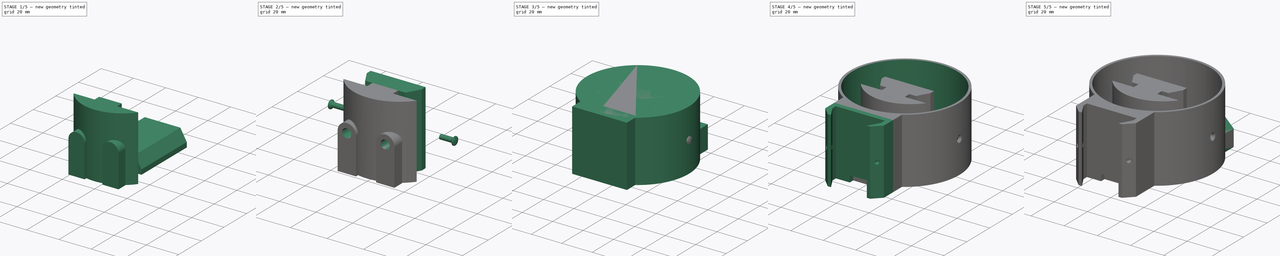
[diagram: build sequence overview — one tinted view per stage of 5, left to right]
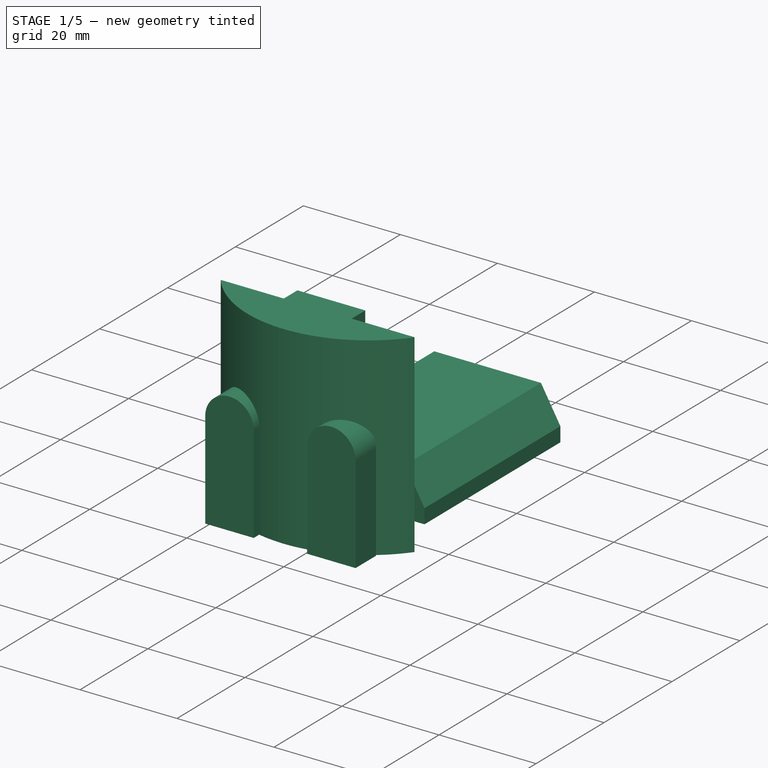
[diagram: stage 1 of 5 — iso view after this stage's code; geometry added in this stage tinted green]
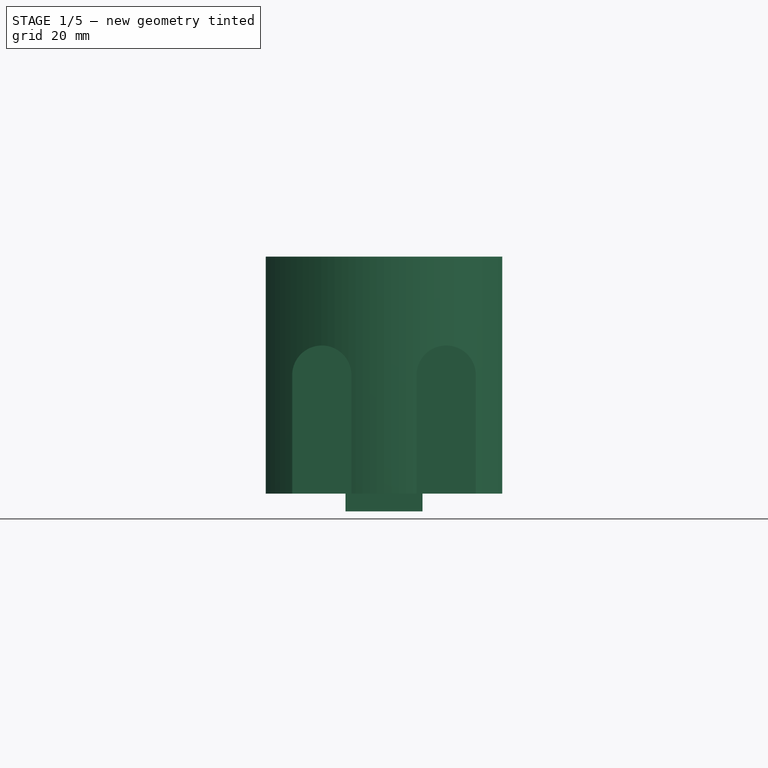
[diagram: stage 1 of 5 — front view after this stage's code; geometry added in this stage tinted green]
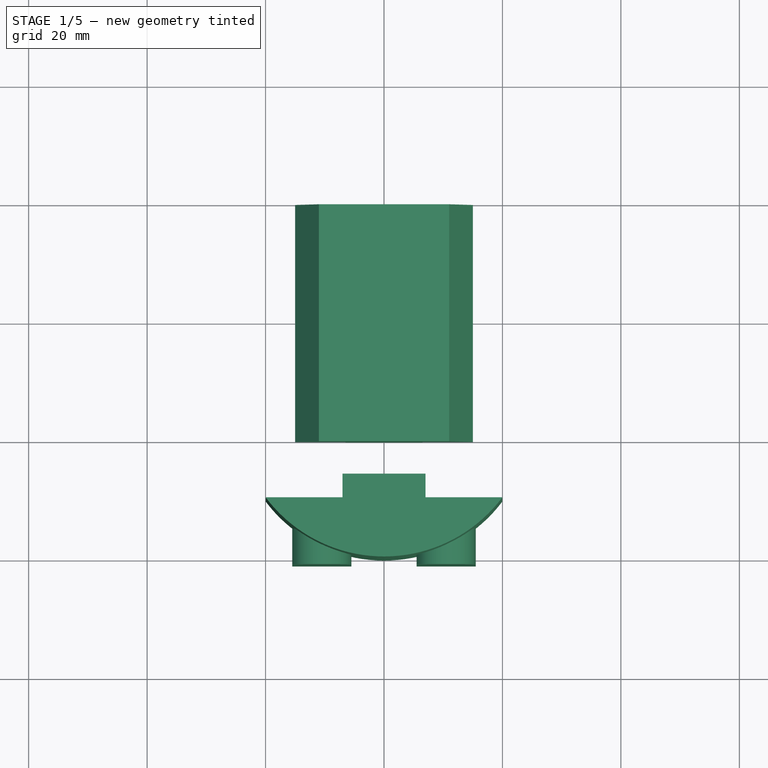
[diagram: stage 1 of 5 — top view after this stage's code; geometry added in this stage tinted green]
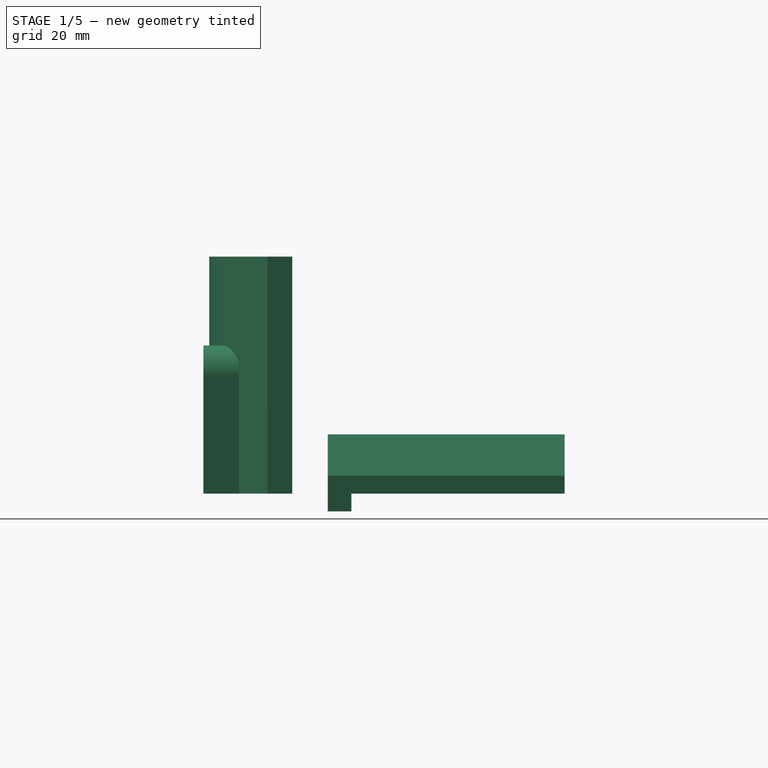
[diagram: stage 1 of 5 — right view after this stage's code; geometry added in this stage tinted green]
FCSTD DOCUMENT  (FreeCAD 0.17R12284 (Git))
Label: dovetail
License: All rights reserved
LicenseURL: http://en.wikipedia.org/wiki/All_rights_reserved
objects: Part::Box×11, Part::Cylinder×11, Part::MultiFuse×10, Part::Cut×8, Sketcher::SketchObject×4, Part::Extrusion×4, Part::FeaturePython×4, Part::Chamfer×2
note: 54 computed .brp shape members not serialized (recipe doc carries the construction recipe); baked Part::Feature solids carry a one-line shape summary decoded from their .brp

FEATURE [Sketcher::SketchObject] Sketch002
  MapMode = 5
  Placement = pos=(0,40,0) rot=(0,0.707107,0.707107;3.14159rad)
  sketch-geometry (6):
    g0: LineSegment StartX=0 StartY=0 StartZ=0 EndX=0 EndY=3 EndZ=0
    g1: LineSegment StartX=0 StartY=3 StartZ=0 EndX=-4 EndY=10 EndZ=0
    g2: LineSegment StartX=-4 StartY=10 StartZ=0 EndX=-26 EndY=10 EndZ=0
    g3: LineSegment StartX=-26 StartY=10 StartZ=0 EndX=-30 EndY=3 EndZ=0
    g4: LineSegment StartX=-30 StartY=3 StartZ=0 EndX=-30 EndY=0 EndZ=0
    g5: LineSegment StartX=-30 StartY=0 StartZ=0 EndX=0 EndY=0 EndZ=0
  constraints (11):
    c: Coincident(g-1,g0)
    c: PointOnObject(g0,g-2)
    c: Coincident(g0,g1)
    c: Coincident(g1,g2)
    c: Horizontal(g2)
    c: Coincident(g2,g3)
    c: Coincident(g3,g4)
    c: PointOnObject(g4,g-1)
    c: Vertical(g4)
    c: Coincident(g4,g5)
    c: Coincident(g5,g0)
FEATURE [Part::Extrusion] Extrude002
  Base = -> Sketch002
  Dir = (0,1,0)
  DirMode = 2
  FaceMakerClass = Part::FaceMakerBullseye
  LengthFwd = -40
  LengthRev = 0
  Placement = pos=(-15,0,0) rot=(0,0,1;0rad)
  Solid = true
  Symmetric = false
FEATURE [Part::Box] Box003  label="Krychle003"
  AttacherType = Attacher::AttachEngine3D
  Height = 3
  Length = 13
  Placement = pos=(-6.5,0,-3) rot=(0,0,1;0rad)
  Width = 4
FEATURE [Part::Cylinder] Cylinder002  label="Válec002"
  Angle = 106
  AttacherType = Attacher::AttachEngine3D
  Height = 40
  Placement = pos=(0,5,0) rot=(0,0,1;3.78736rad)
  Radius = 25
FEATURE [Part::Box] Box004  label="Krychle004"
  AttacherType = Attacher::AttachEngine3D
  Height = 40
  Length = 40
  Placement = pos=(-20,-10,0) rot=(0,0,1;0rad)
  Width = 15
FEATURE [Part::Cut] Cut002
  Base = -> Cylinder002
  Tool = -> Box004
FEATURE [Part::Box] Box005  label="Krychle005"
  AttacherType = Attacher::AttachEngine3D
  Height = 40
  Length = 14
  Placement = pos=(-7,-10,0) rot=(0,0,1;0rad)
  Width = 4
FEATURE [Part::Box] Box006  label="Krychle006"
  AttacherType = Attacher::AttachEngine3D
  Height = 20
  Length = 10
  Placement = pos=(5.5,-21,0) rot=(0,0,1;0rad)
  Width = 6
FEATURE [Part::Box] Box007  label="Krychle007"
  AttacherType = Attacher::AttachEngine3D
  Height = 20
  Length = 10
  Placement = pos=(-15.5,-21,0) rot=(0,0,1;0rad)
  Width = 6
FEATURE [Part::Cylinder] Cylinder003  label="Válec003"
  Angle = 360
  AttacherType = Attacher::AttachEngine3D
  Height = 6
  Placement = pos=(10.5,-15,20) rot=(1,0,0;1.5708rad)
  Radius = 5
FEATURE [Part::Cylinder] Cylinder004  label="Válec004"
  Angle = 360
  AttacherType = Attacher::AttachEngine3D
  Height = 6
  Placement = pos=(-10.5,-15,20) rot=(1,0,0;1.5708rad)
  Radius = 5
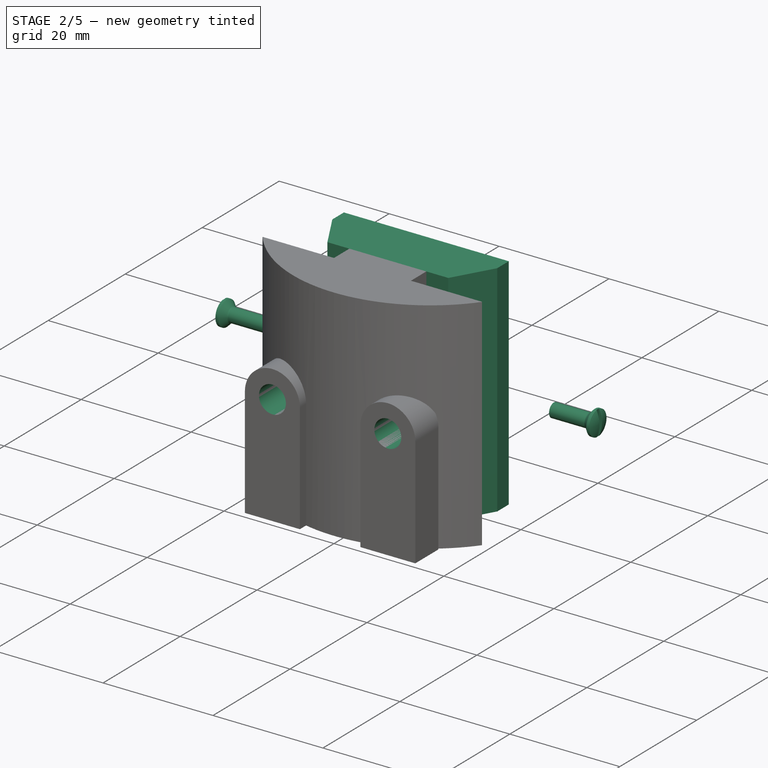
[diagram: stage 2 of 5 — iso view after this stage's code; geometry added in this stage tinted green]
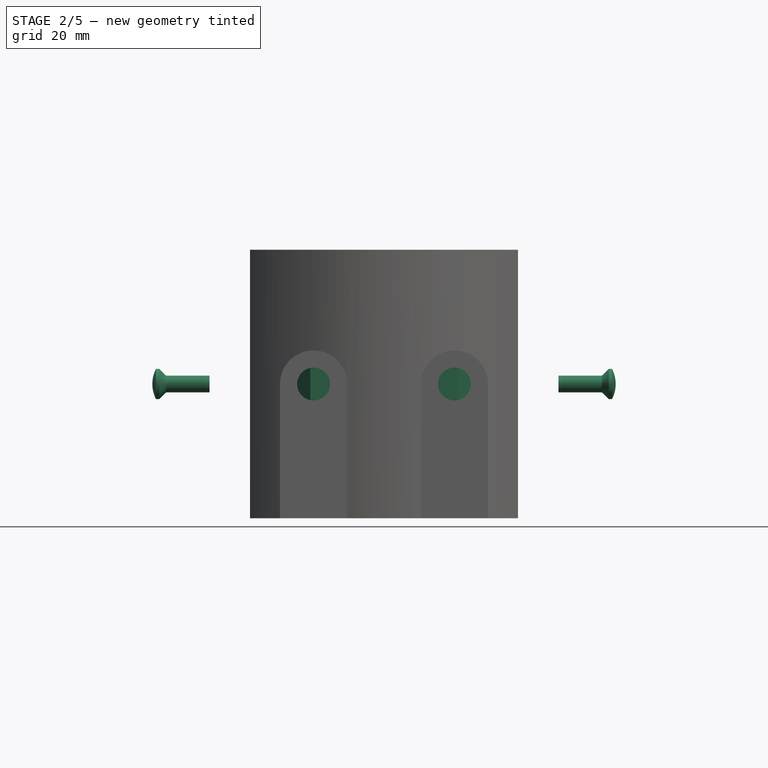
[diagram: stage 2 of 5 — front view after this stage's code; geometry added in this stage tinted green]
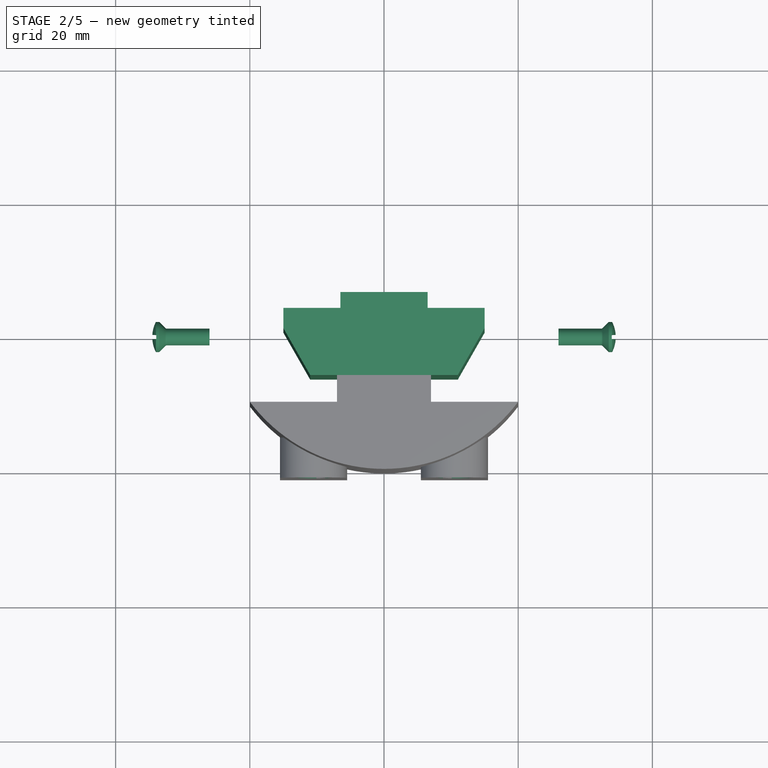
[diagram: stage 2 of 5 — top view after this stage's code; geometry added in this stage tinted green]
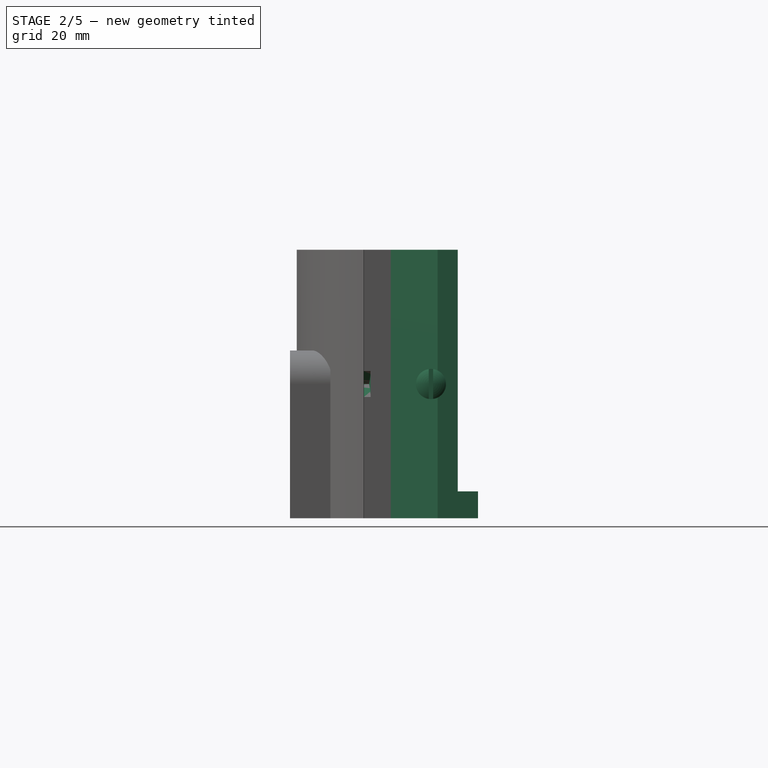
[diagram: stage 2 of 5 — right view after this stage's code; geometry added in this stage tinted green]
FEATURE [Part::MultiFuse] Fusion003  label="Dovelal profile001"
  Placement = pos=(0,4,0) rot=(1,0,0;1.5708rad)
  Shapes = -> [Extrude002,Box003]
FEATURE [Part::Cylinder] Cylinder005  label="Válec005"
  Angle = 360
  AttacherType = Attacher::AttachEngine3D
  Height = 16
  Placement = pos=(10.5,-7,20) rot=(1,0,0;1.5708rad)
  Radius = 2.45
FEATURE [Part::Cylinder] Cylinder006  label="Válec006"
  Angle = 360
  AttacherType = Attacher::AttachEngine3D
  Height = 16
  Placement = pos=(-10.5,-7,20) rot=(1,0,0;1.5708rad)
  Radius = 2.45
FEATURE [Part::FeaturePython] Nut  label="M5-Nut"  # Fasteners workbench fastener (typed FeaturePython)
  Placement = pos=(-10.5,-9,20) rot=(1,0,0;1.5708rad)
  diameter = 7
  invert = false
  matchOuter = false
  offset = 0
  thread = false
  type = 1
FEATURE [Part::FeaturePython] Nut001  label="M5-Nut001"  # Fasteners workbench fastener (typed FeaturePython)
  Placement = pos=(10.5,-9,20) rot=(1,0,0;1.5708rad)
  diameter = 7
  invert = false
  matchOuter = false
  offset = 0
  thread = false
  type = 1
FEATURE [Part::MultiFuse] Fusion005
  Shapes = -> [Nut,Nut001,Cylinder006,Cylinder005]
FEATURE [Part::FeaturePython] Screw  label="M2.5x8-Screw"  # Fasteners workbench fastener (typed FeaturePython)
  Placement = pos=(34,0,20) rot=(0,1,0;1.5708rad)
  diameter = 3
  invert = false
  length = 3
  matchOuter = false
  offset = 0
  thread = false
  type = 12
FEATURE [Part::FeaturePython] Screw001  label="M2.5x8-Screw001"  # Fasteners workbench fastener (typed FeaturePython)
  Placement = pos=(-34,0,20) rot=(0,-1,0;1.5708rad)
  diameter = 3
  invert = false
  length = 3
  matchOuter = false
  offset = 0
  thread = false
  type = 12
FEATURE [Part::MultiFuse] Fusion010
  Shapes = -> [Cylinder003,Box006,Fusion003,Cut002,Cylinder004,Box007,Box005]
FEATURE [Part::Cut] Cut008  label="Dovetail adapter"
  Base = -> Fusion010
  Tool = -> Fusion005
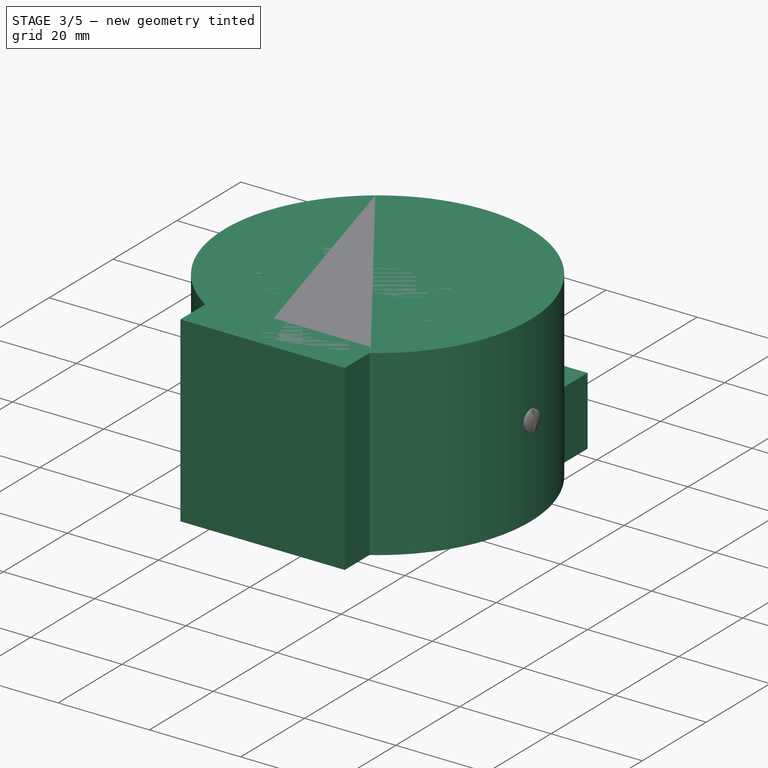
[diagram: stage 3 of 5 — iso view after this stage's code; geometry added in this stage tinted green]
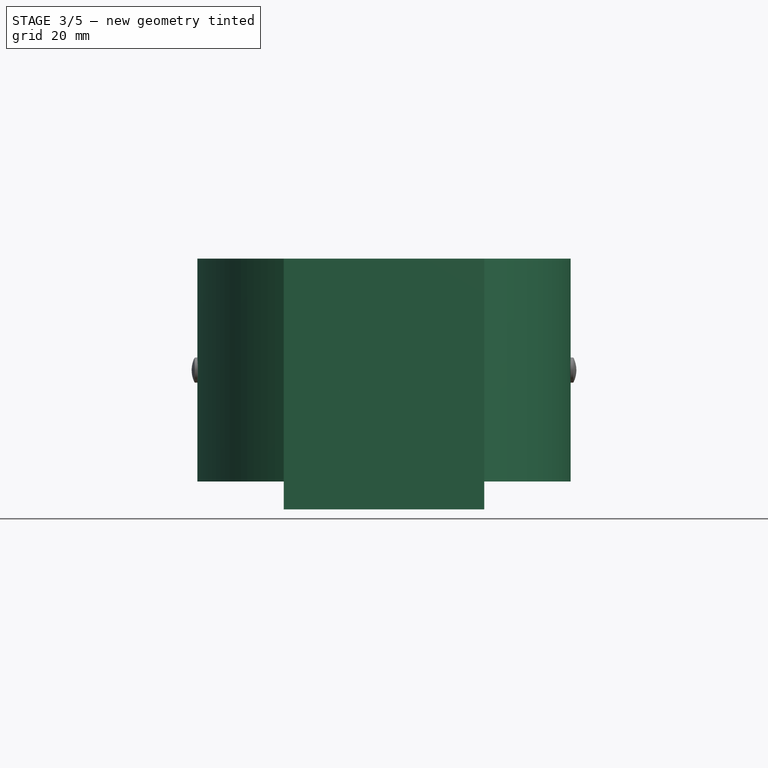
[diagram: stage 3 of 5 — front view after this stage's code; geometry added in this stage tinted green]
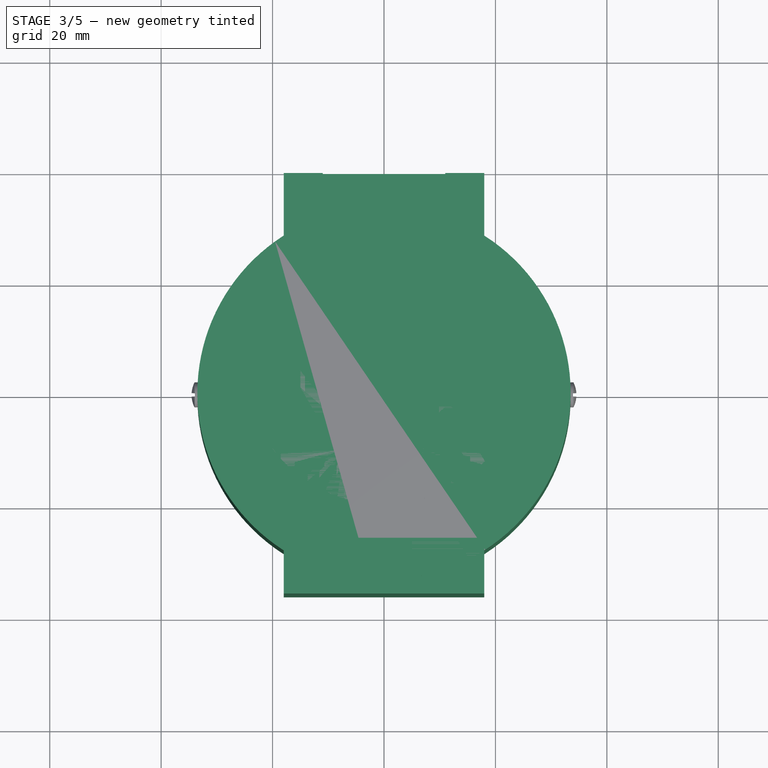
[diagram: stage 3 of 5 — top view after this stage's code; geometry added in this stage tinted green]
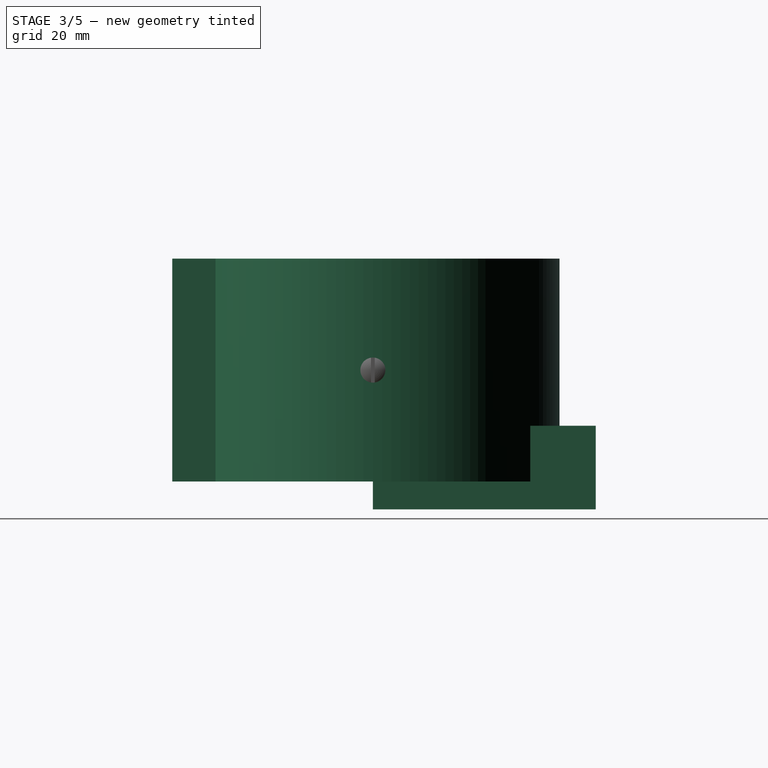
[diagram: stage 3 of 5 — right view after this stage's code; geometry added in this stage tinted green]
FEATURE [Sketcher::SketchObject] Sketch003
  MapMode = 5
  Placement = pos=(0,40,0) rot=(0,0.707107,0.707107;3.14159rad)
  sketch-geometry (6):
    g0: LineSegment StartX=0 StartY=0 StartZ=0 EndX=0 EndY=3 EndZ=0
    g1: LineSegment StartX=0 StartY=3 StartZ=0 EndX=-4 EndY=10 EndZ=0
    g2: LineSegment StartX=-4 StartY=10 StartZ=0 EndX=-26 EndY=10 EndZ=0
    g3: LineSegment StartX=-26 StartY=10 StartZ=0 EndX=-30 EndY=3 EndZ=0
    g4: LineSegment StartX=-30 StartY=3 StartZ=0 EndX=-30 EndY=0 EndZ=0
    g5: LineSegment StartX=-30 StartY=0 StartZ=0 EndX=0 EndY=0 EndZ=0
  constraints (11):
    c: Coincident(g-1,g0)
    c: PointOnObject(g0,g-2)
    c: Coincident(g0,g1)
    c: Coincident(g1,g2)
    c: Horizontal(g2)
    c: Coincident(g2,g3)
    c: Coincident(g3,g4)
    c: PointOnObject(g4,g-1)
    c: Vertical(g4)
    c: Coincident(g4,g5)
    c: Coincident(g5,g0)
FEATURE [Part::Extrusion] Extrude003
  Base = -> Sketch003
  Dir = (0,1,0)
  DirMode = 2
  FaceMakerClass = Part::FaceMakerBullseye
  LengthFwd = -40
  LengthRev = 0
  Placement = pos=(-15,0,0) rot=(0,0,1;0rad)
  Solid = true
  Symmetric = false
FEATURE [Part::Cylinder] Cylinder007  label="Válec007"
  Angle = 360
  AttacherType = Attacher::AttachEngine3D
  Height = 10
  Placement = pos=(-12,20,4) rot=(0,-1,0;0.785398rad)
  Radius = 1.4
FEATURE [Part::Cylinder] Cylinder008  label="Válec008"
  Angle = 360
  AttacherType = Attacher::AttachEngine3D
  Height = 10
  Placement = pos=(12,20,4) rot=(0,1,0;0.785398rad)
  Radius = 1.4
FEATURE [Part::Box] Box008  label="Krychle008"
  AttacherType = Attacher::AttachEngine3D
  Height = 15
  Length = 36
  Placement = pos=(-18,0,-5) rot=(0,0,1;0rad)
  Width = 40
FEATURE [Part::Box] Box009  label="Krychle009"
  AttacherType = Attacher::AttachEngine3D
  Height = 3
  Length = 13
  Placement = pos=(-6.5,0,-3) rot=(0,0,1;0rad)
  Width = 4
FEATURE [Part::MultiFuse] Fusion007  label="Dovecot profile002"
  Shapes = -> [Extrude003,Box009]
FEATURE [Part::Cut] Cut004
  Base = -> Box008
  Tool = -> Fusion007
FEATURE [Part::Cylinder] Cylinder010  label="Válec010"
  Angle = 360
  AttacherType = Attacher::AttachEngine3D
  Height = 40
  Placement = pos=(0,0,0) rot=(0,0,1;3.83972rad)
  Radius = 33.5
FEATURE [Part::Box] Box010  label="Krychle010"
  AttacherType = Attacher::AttachEngine3D
  Height = 40
  Length = 36
  Placement = pos=(-18,-36,0) rot=(0,0,1;0rad)
  Width = 10
FEATURE [Part::MultiFuse] Fusion009
  Shapes = -> [Screw,Screw001]
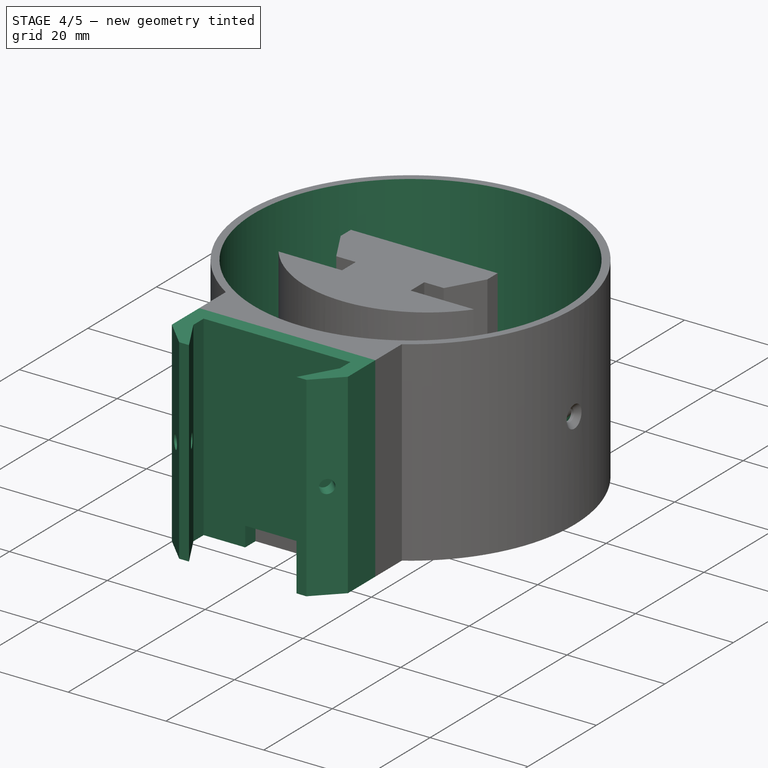
[diagram: stage 4 of 5 — iso view after this stage's code; geometry added in this stage tinted green]
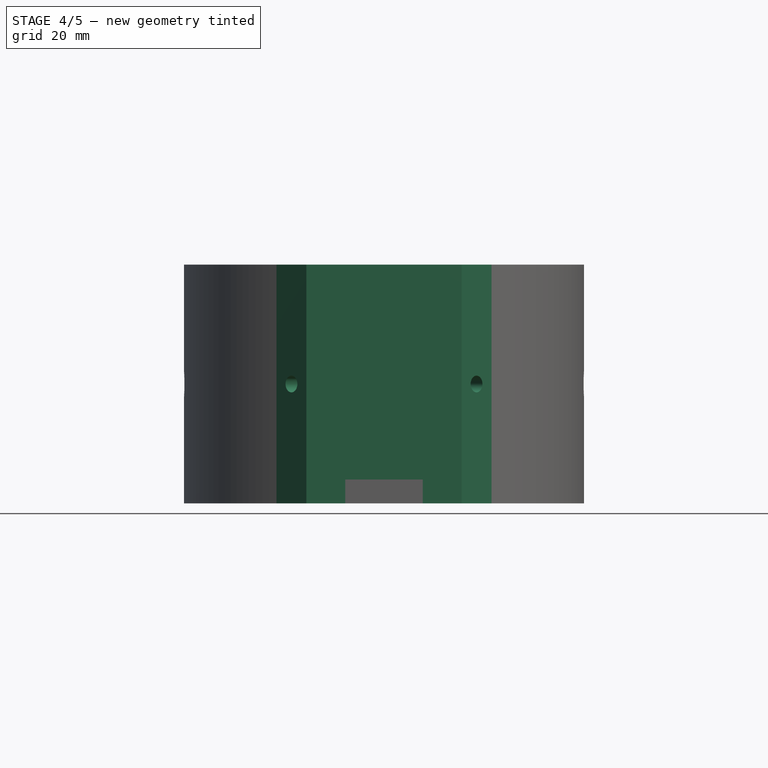
[diagram: stage 4 of 5 — front view after this stage's code; geometry added in this stage tinted green]
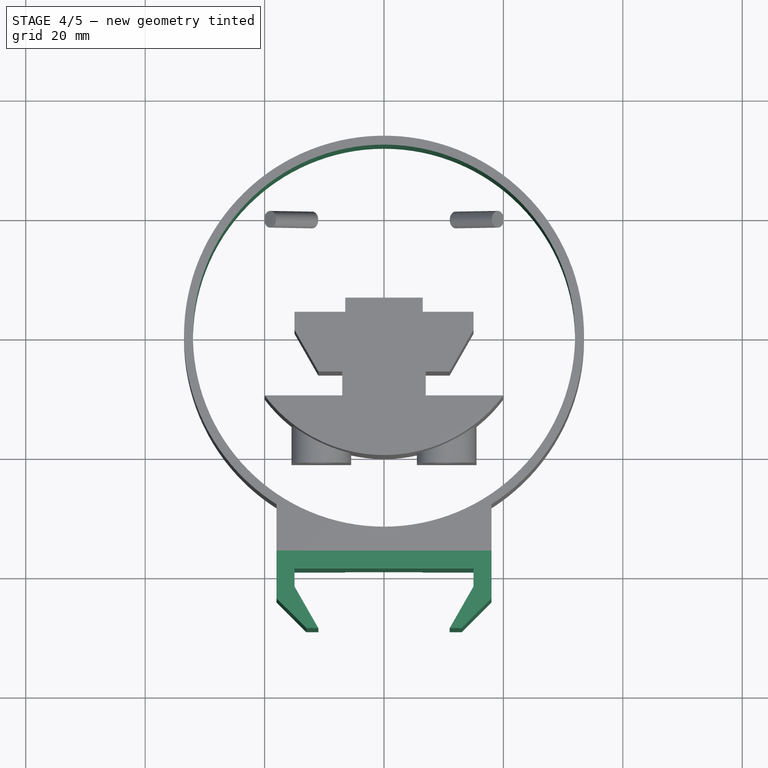
[diagram: stage 4 of 5 — top view after this stage's code; geometry added in this stage tinted green]
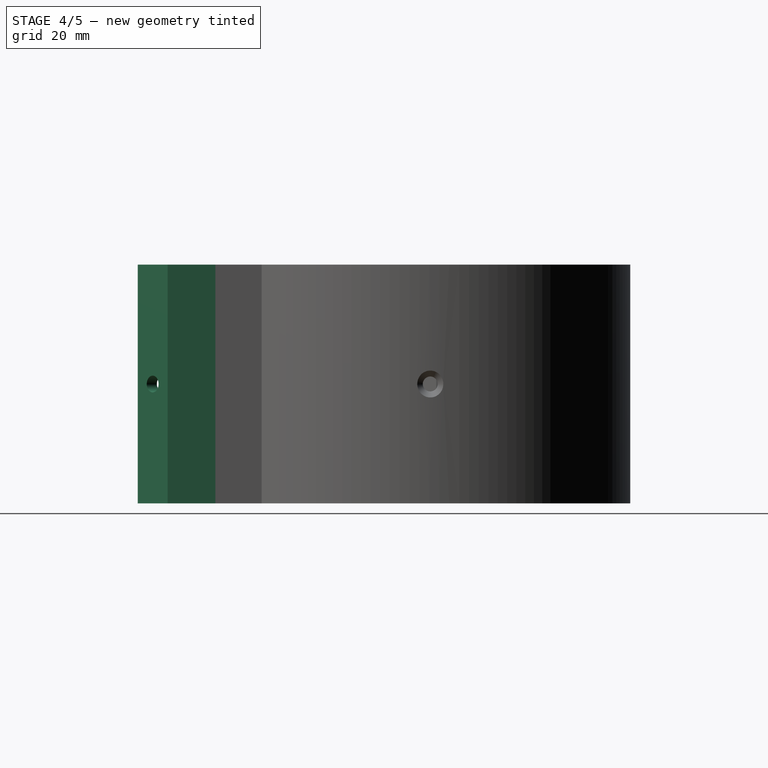
[diagram: stage 4 of 5 — right view after this stage's code; geometry added in this stage tinted green]
FEATURE [Part::Cylinder] Cylinder  label="Válec"
  Angle = 360
  AttacherType = Attacher::AttachEngine3D
  Height = 10
  Placement = pos=(12,20,4) rot=(0,1,0;0.785398rad)
  Radius = 1.4
FEATURE [Part::Cylinder] Cylinder001  label="Válec001"
  Angle = 360
  AttacherType = Attacher::AttachEngine3D
  Height = 10
  Placement = pos=(-12,20,4) rot=(0,-1,0;0.785398rad)
  Radius = 1.4
FEATURE [Part::MultiFuse] Fusion002
  Shapes = -> [Cylinder,Cylinder001]
FEATURE [Part::MultiFuse] Fusion006
  Shapes = -> [Cylinder008,Cylinder007]
FEATURE [Part::Chamfer] Chamfer001
  Base = -> Cut004
  Edges = 2 edges r=5: [Edge2,Edge29]
FEATURE [Part::Cut] Cut005  label="Dov holder001"
  Base = -> Chamfer001
  Placement = pos=(0,-39,0) rot=(1,0,0;1.5708rad)
  Tool = -> Fusion006
FEATURE [Part::Cylinder] Cylinder009  label="Válec009"
  Angle = 360
  AttacherType = Attacher::AttachEngine3D
  Height = 40
  Placement = pos=(0,0,0) rot=(0,0,1;0.872665rad)
  Radius = 32
FEATURE [Part::MultiFuse] Fusion008
  Shapes = -> [Cylinder010,Cut005,Box010]
FEATURE [Part::Cut] Cut006
  Base = -> Fusion008
  Tool = -> Cylinder009
FEATURE [Part::Cut] Cut007  label="Telscop dovetail holder"
  Base = -> Cut006
  Tool = -> Fusion009
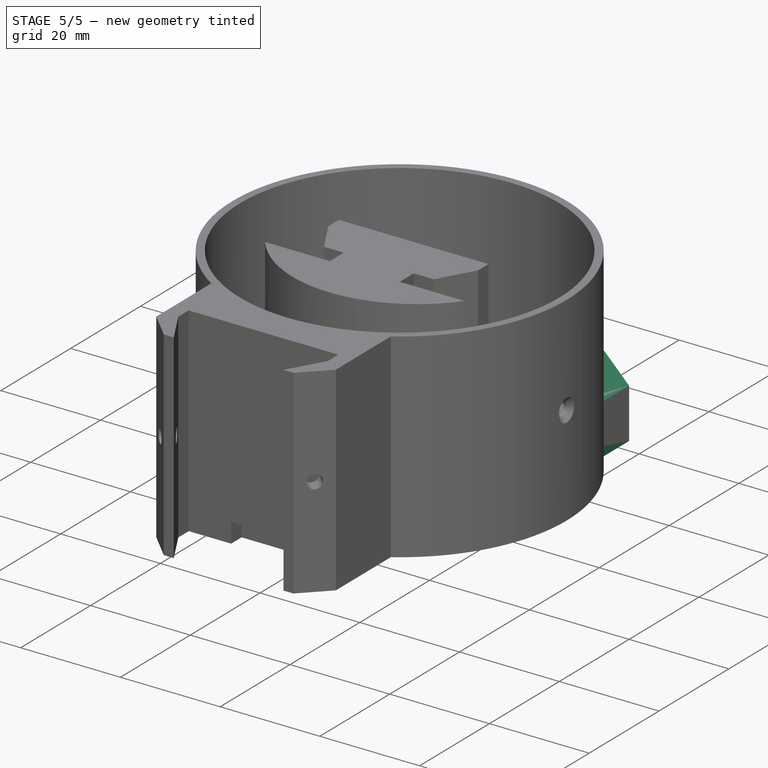
[diagram: stage 5 of 5 — iso view after this stage's code; geometry added in this stage tinted green]
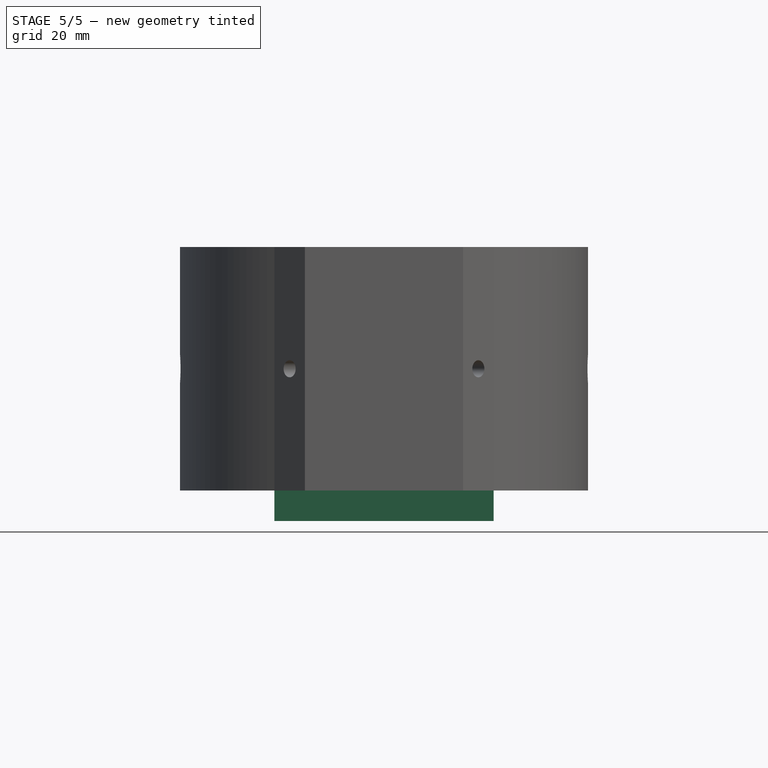
[diagram: stage 5 of 5 — front view after this stage's code; geometry added in this stage tinted green]
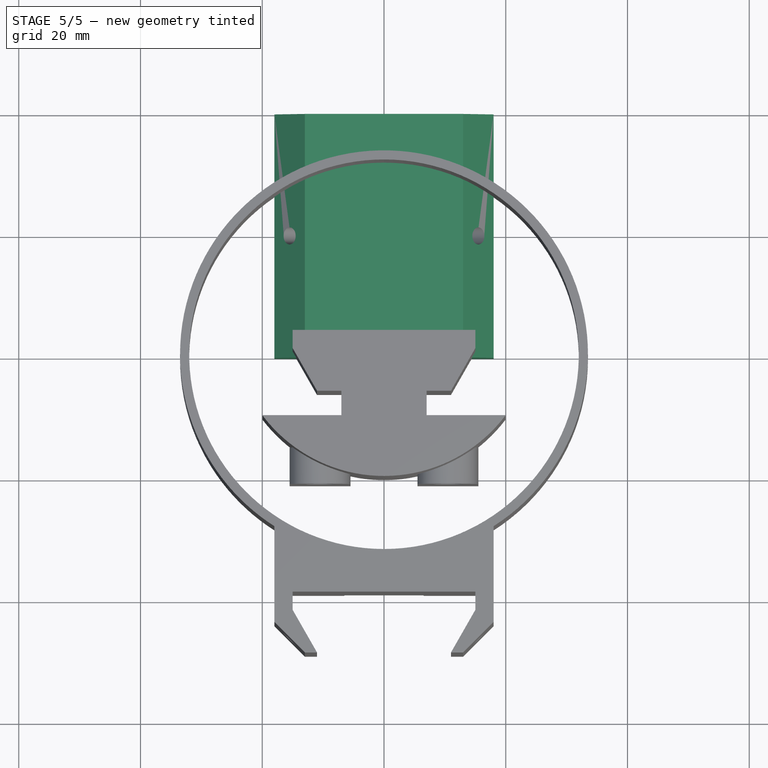
[diagram: stage 5 of 5 — top view after this stage's code; geometry added in this stage tinted green]
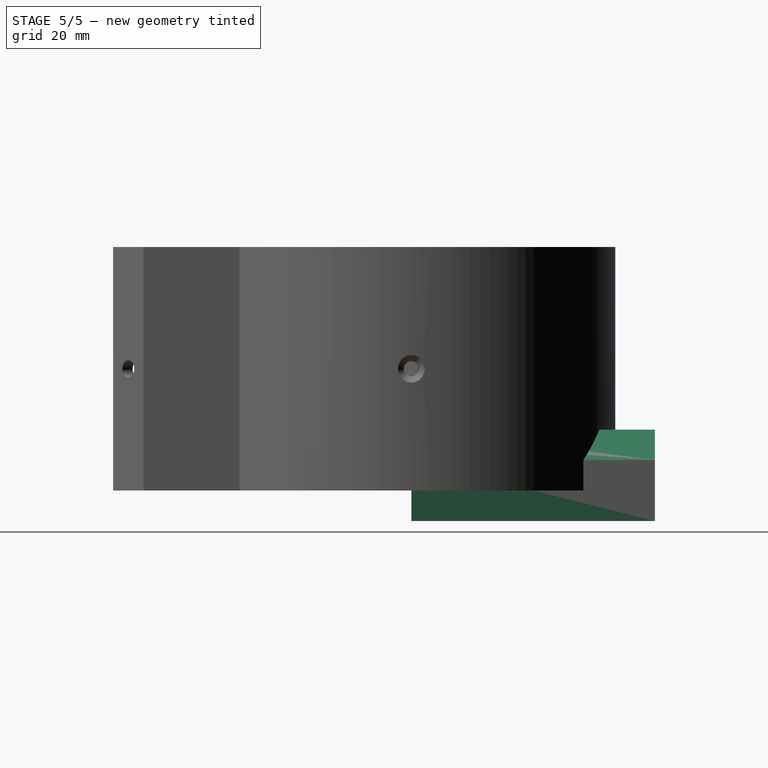
[diagram: stage 5 of 5 — right view after this stage's code; geometry added in this stage tinted green]
FEATURE [Sketcher::SketchObject] Sketch
  MapMode = 5
  Placement = pos=(0,40,0) rot=(0,0.707107,0.707107;3.14159rad)
  sketch-geometry (6):
    g0: LineSegment StartX=0 StartY=0 StartZ=0 EndX=0 EndY=3 EndZ=0
    g1: LineSegment StartX=0 StartY=3 StartZ=0 EndX=-4 EndY=10 EndZ=0
    g2: LineSegment StartX=-4 StartY=10 StartZ=0 EndX=-26 EndY=10 EndZ=0
    g3: LineSegment StartX=-26 StartY=10 StartZ=0 EndX=-30 EndY=3 EndZ=0
    g4: LineSegment StartX=-30 StartY=3 StartZ=0 EndX=-30 EndY=0 EndZ=0
    g5: LineSegment StartX=-30 StartY=0 StartZ=0 EndX=0 EndY=0 EndZ=0
  constraints (11):
    c: Coincident(g-1,g0)
    c: PointOnObject(g0,g-2)
    c: Coincident(g0,g1)
    c: Coincident(g1,g2)
    c: Horizontal(g2)
    c: Coincident(g2,g3)
    c: Coincident(g3,g4)
    c: PointOnObject(g4,g-1)
    c: Vertical(g4)
    c: Coincident(g4,g5)
    c: Coincident(g5,g0)
FEATURE [Part::Extrusion] Extrude
  Base = -> Sketch
  Dir = (0,1,0)
  DirMode = 2
  FaceMakerClass = Part::FaceMakerBullseye
  LengthFwd = -40
  LengthRev = 0
  Placement = pos=(-15,0,0) rot=(0,0,1;0rad)
  Solid = true
  Symmetric = false
FEATURE [Part::Box] Box  label="Krychle"
  AttacherType = Attacher::AttachEngine3D
  Height = 3
  Length = 13
  Placement = pos=(-6.5,0,-3) rot=(0,0,1;0rad)
  Width = 4
FEATURE [Part::MultiFuse] Fusion  label="Dovelal profile"
  Shapes = -> [Extrude,Box]
FEATURE [Part::Box] Box001  label="Krychle001"
  AttacherType = Attacher::AttachEngine3D
  Height = 15
  Length = 36
  Placement = pos=(-18,0,-5) rot=(0,0,1;0rad)
  Width = 40
FEATURE [Part::Box] Box002  label="Krychle002"
  AttacherType = Attacher::AttachEngine3D
  Height = 3
  Length = 13
  Placement = pos=(-6.5,0,-3) rot=(0,0,1;0rad)
  Width = 4
FEATURE [Sketcher::SketchObject] Sketch001
  MapMode = 5
  Placement = pos=(0,40,0) rot=(0,0.707107,0.707107;3.14159rad)
  sketch-geometry (6):
    g0: LineSegment StartX=0 StartY=0 StartZ=0 EndX=0 EndY=3 EndZ=0
    g1: LineSegment StartX=0 StartY=3 StartZ=0 EndX=-4 EndY=10 EndZ=0
    g2: LineSegment StartX=-4 StartY=10 StartZ=0 EndX=-26 EndY=10 EndZ=0
    g3: LineSegment StartX=-26 StartY=10 StartZ=0 EndX=-30 EndY=3 EndZ=0
    g4: LineSegment StartX=-30 StartY=3 StartZ=0 EndX=-30 EndY=0 EndZ=0
    g5: LineSegment StartX=-30 StartY=0 StartZ=0 EndX=0 EndY=0 EndZ=0
  constraints (11):
    c: Coincident(g-1,g0)
    c: PointOnObject(g0,g-2)
    c: Coincident(g0,g1)
    c: Coincident(g1,g2)
    c: Horizontal(g2)
    c: Coincident(g2,g3)
    c: Coincident(g3,g4)
    c: PointOnObject(g4,g-1)
    c: Vertical(g4)
    c: Coincident(g4,g5)
    c: Coincident(g5,g0)
FEATURE [Part::Extrusion] Extrude001
  Base = -> Sketch001
  Dir = (0,1,0)
  DirMode = 2
  FaceMakerClass = Part::FaceMakerBullseye
  LengthFwd = -40
  LengthRev = 0
  Placement = pos=(-15,0,0) rot=(0,0,1;0rad)
  Solid = true
  Symmetric = false
FEATURE [Part::MultiFuse] Fusion001  label="Dovecot profile001"
  Shapes = -> [Extrude001,Box002]
FEATURE [Part::Cut] Cut
  Base = -> Box001
  Tool = -> Fusion001
FEATURE [Part::Chamfer] Chamfer
  Base = -> Cut
  Edges = 2 edges r=5: [Edge2,Edge29]
FEATURE [Part::Cut] Cut001  label="Dov holder"
  Base = -> Chamfer
  Tool = -> Fusion002
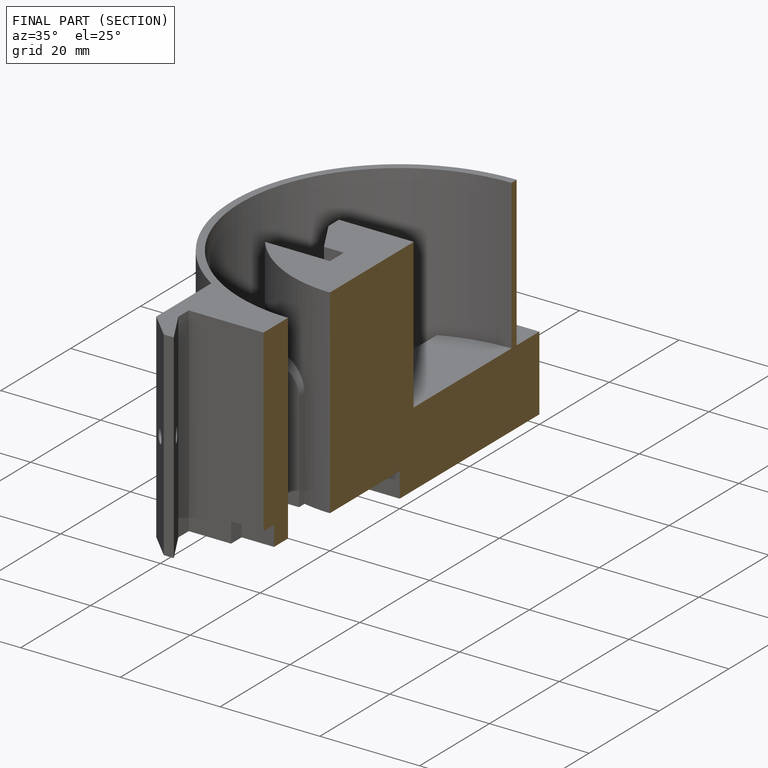
[diagram: finished part — half-section view (interior)]
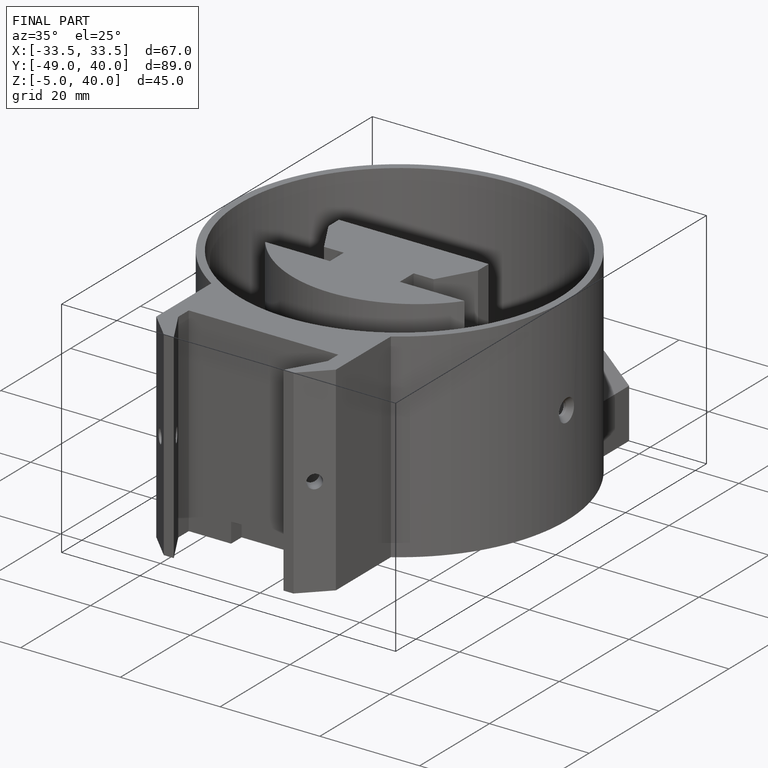
[diagram: finished part — iso view with bounding-box wireframe]
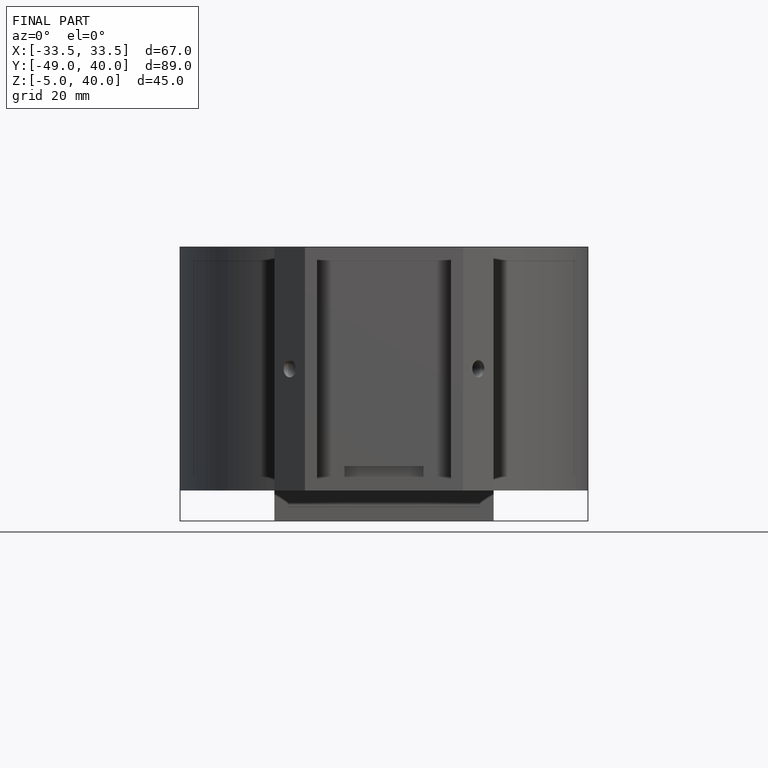
[diagram: finished part — front view with bounding-box wireframe]
